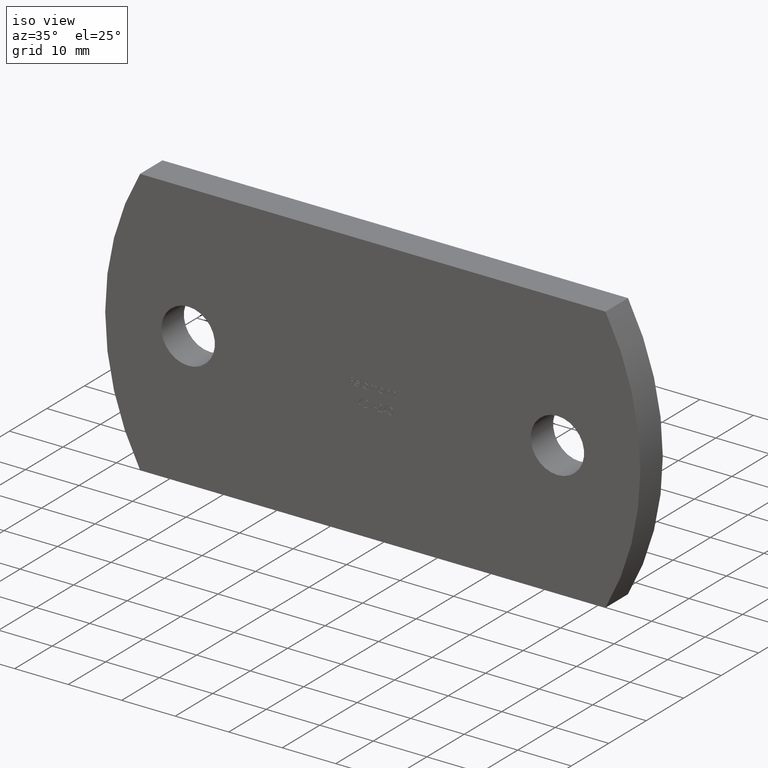
[diagram: clean part render]
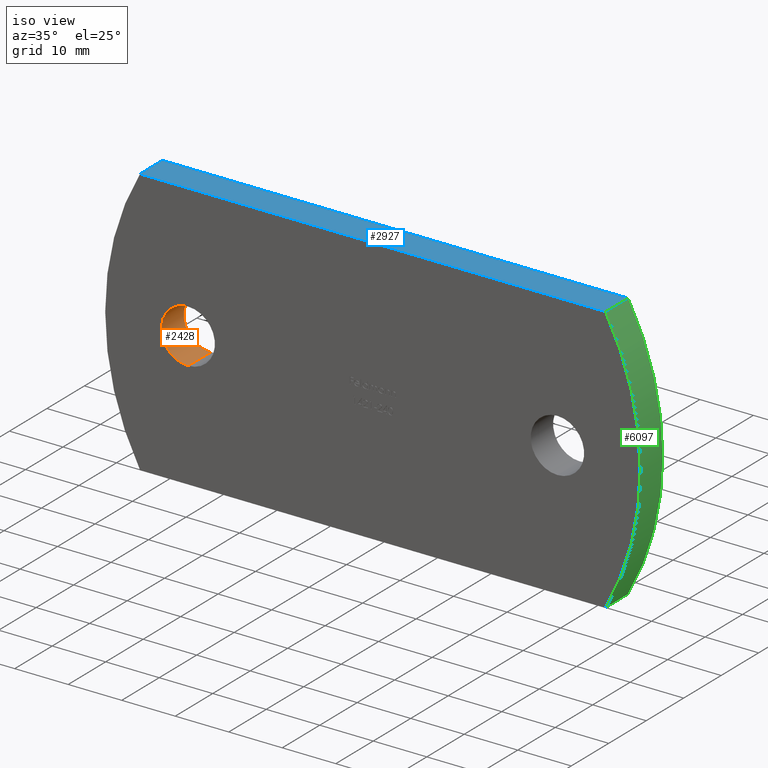
[diagram: same view with three faces highlighted in distinct colors, each labeled with its STEP entity id]
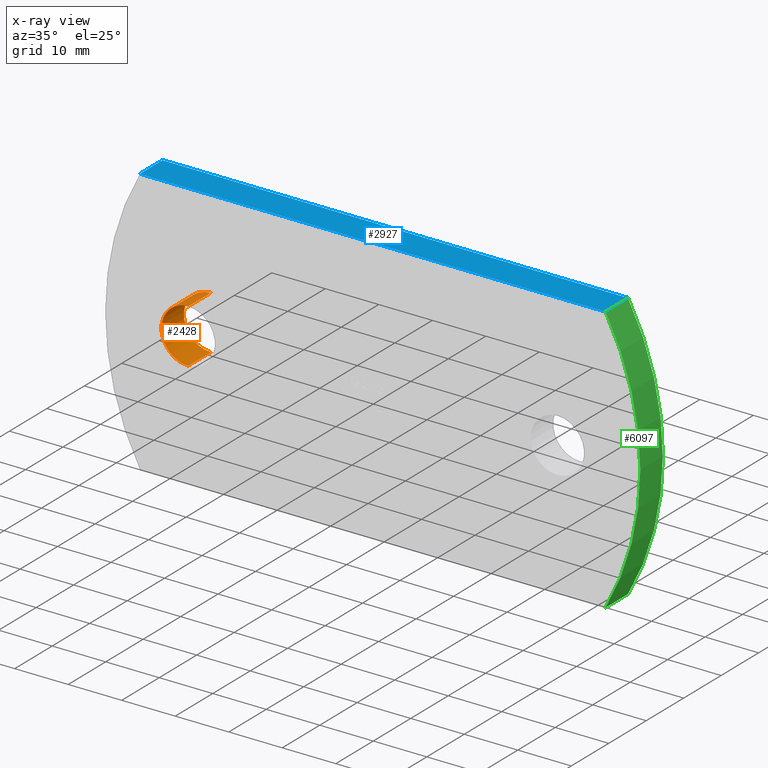
[diagram: x-ray of the same camera — body ghosted, the three highlighted faces saturated]
A machine part, iso view with three faces highlighted in distinct colors.
The next image is the same camera in x-ray (body ghosted, the three faces saturated) — at least one of them is partly hidden behind the body in this view.
Their STEP definitions:

[orange] entity #2428 — the highlighted cylindrical surface (edge-blend (fillet) strip) has radius 5 mm, axis along (-0, 1, -0).
#592 = FACE_OUTER_BOUND ( 'NONE', #7087, .T. ) ;
#674 = VERTEX_POINT ( 'NONE', #7604 ) ;
#957 = DIRECTION ( 'NONE',  ( 0.000000000000000000, 1.000000000000000000, 0.000000000000000000 ) ) ;
#1007 = LINE ( 'NONE', #8254, #4015 ) ;
#1648 = CARTESIAN_POINT ( 'NONE',  ( -34.50000000000000000, 3.000000000000000000, 5.000000000000000000 ) ) ;
#1689 = AXIS2_PLACEMENT_3D ( 'NONE', #5326, #6112, #7735 ) ;
#1871 = DIRECTION ( 'NONE',  ( 0.000000000000000000, 1.000000000000000000, 0.000000000000000000 ) ) ;
#2428 = ADVANCED_FACE ( 'NONE', ( #592 ), #9794, .F. ) ;
#2610 = DIRECTION ( 'NONE',  ( -0.000000000000000000, 1.000000000000000000, -0.000000000000000000 ) ) ;
#2976 = VECTOR ( 'NONE', #2610, 1000.000000000000000 ) ;
#3237 = VERTEX_POINT ( 'NONE', #1648 ) ;
#3359 = ORIENTED_EDGE ( 'NONE', *, *, #8407, .F. ) ;
#3436 = EDGE_CURVE ( 'NONE', #9226, #674, #6781, .T. ) ;
#3767 = CARTESIAN_POINT ( 'NONE',  ( -34.50000000000000000, -3.000000000000000000, -5.000000000000000000 ) ) ;
#3837 = EDGE_CURVE ( 'NONE', #9156, #3237, #6034, .T. ) ;
#4015 = VECTOR ( 'NONE', #9023, 1000.000000000000000 ) ;
#4118 = CARTESIAN_POINT ( 'NONE',  ( -34.50000000000000000, -7.000000000000000000, 5.000000000000000000 ) ) ;
#4231 = DIRECTION ( 'NONE',  ( 0.000000000000000000, 0.000000000000000000, 1.000000000000000000 ) ) ;
#5326 = CARTESIAN_POINT ( 'NONE',  ( -34.50000000000000000, -7.000000000000000000, 0.000000000000000000 ) ) ;
#6034 = CIRCLE ( 'NONE', #8026, 5.000000000000000000 ) ;
#6112 = DIRECTION ( 'NONE',  ( -0.000000000000000000, 1.000000000000000000, -0.000000000000000000 ) ) ;
#6415 = EDGE_CURVE ( 'NONE', #9226, #9156, #1007, .T. ) ;
#6539 = CARTESIAN_POINT ( 'NONE',  ( -34.50000000000000000, -3.000000000000000000, 0.000000000000000000 ) ) ;
#6781 = CIRCLE ( 'NONE', #7162, 5.000000000000000000 ) ;
#7087 = EDGE_LOOP ( 'NONE', ( #10130, #9588, #8594, #3359 ) ) ;
#7162 = AXIS2_PLACEMENT_3D ( 'NONE', #6539, #1871, #7373 ) ;
#7373 = DIRECTION ( 'NONE',  ( 0.000000000000000000, 0.000000000000000000, 1.000000000000000000 ) ) ;
#7604 = CARTESIAN_POINT ( 'NONE',  ( -34.50000000000000000, -3.000000000000000000, 5.000000000000000000 ) ) ;
#7735 = DIRECTION ( 'NONE',  ( 0.000000000000000000, 0.000000000000000000, 1.000000000000000000 ) ) ;
#8026 = AXIS2_PLACEMENT_3D ( 'NONE', #8058, #957, #4231 ) ;
#8058 = CARTESIAN_POINT ( 'NONE',  ( -34.50000000000000000, 3.000000000000000000, 0.000000000000000000 ) ) ;
#8254 = CARTESIAN_POINT ( 'NONE',  ( -34.50000000000000000, -7.000000000000000000, -5.000000000000000000 ) ) ;
#8407 = EDGE_CURVE ( 'NONE', #674, #3237, #9416, .T. ) ;
#8594 = ORIENTED_EDGE ( 'NONE', *, *, #3837, .T. ) ;
#9023 = DIRECTION ( 'NONE',  ( -0.000000000000000000, 1.000000000000000000, -0.000000000000000000 ) ) ;
#9156 = VERTEX_POINT ( 'NONE', #10035 ) ;
#9226 = VERTEX_POINT ( 'NONE', #3767 ) ;
#9416 = LINE ( 'NONE', #4118, #2976 ) ;
#9588 = ORIENTED_EDGE ( 'NONE', *, *, #6415, .T. ) ;
#9794 = CYLINDRICAL_SURFACE ( 'NONE', #1689, 5.000000000000000000 ) ;
#10035 = CARTESIAN_POINT ( 'NONE',  ( -34.50000000000000000, 3.000000000000000000, -5.000000000000000000 ) ) ;
#10130 = ORIENTED_EDGE ( 'NONE', *, *, #3436, .F. ) ;

[blue] entity #2927 — the highlighted planar face has unit normal (0, 0, -1).
#203 = VECTOR ( 'NONE', #8118, 1000.000000000000000 ) ;
#423 = VERTEX_POINT ( 'NONE', #8859 ) ;
#510 = DIRECTION ( 'NONE',  ( -0.000000000000000000, -1.000000000000000000, -0.000000000000000000 ) ) ;
#757 = AXIS2_PLACEMENT_3D ( 'NONE', #1334, #5395, #9330 ) ;
#1064 = CARTESIAN_POINT ( 'NONE',  ( -43.50000000000000711, 3.000000000000000000, 25.00000000000000000 ) ) ;
#1334 = CARTESIAN_POINT ( 'NONE',  ( -43.50000000000000711, 3.000000000000000000, 25.00000000000000000 ) ) ;
#1882 = VERTEX_POINT ( 'NONE', #7319 ) ;
#1944 = LINE ( 'NONE', #3332, #203 ) ;
#2182 = PLANE ( 'NONE',  #757 ) ;
#2622 = VECTOR ( 'NONE', #3963, 1000.000000000000000 ) ;
#2860 = ORIENTED_EDGE ( 'NONE', *, *, #10190, .T. ) ;
#2923 = CARTESIAN_POINT ( 'NONE',  ( 43.49999999999998579, 3.000000000000000000, 25.00000000000003553 ) ) ;
#2927 = ADVANCED_FACE ( 'NONE', ( #7078 ), #2182, .F. ) ;
#3093 = CARTESIAN_POINT ( 'NONE',  ( -43.50000000000000711, -3.000000000000000000, 25.00000000000000000 ) ) ;
#3140 = LINE ( 'NONE', #3093, #2622 ) ;
#3332 = CARTESIAN_POINT ( 'NONE',  ( -43.50000000000000711, 3.000000000000000000, 25.00000000000000000 ) ) ;
#3432 = ORIENTED_EDGE ( 'NONE', *, *, #6780, .F. ) ;
#3745 = EDGE_LOOP ( 'NONE', ( #5905, #5338, #3432, #2860 ) ) ;
#3963 = DIRECTION ( 'NONE',  ( 1.000000000000000000, 0.000000000000000000, 3.190296047773438629E-16 ) ) ;
#4247 = VECTOR ( 'NONE', #510, 1000.000000000000000 ) ;
#4496 = VERTEX_POINT ( 'NONE', #4581 ) ;
#4581 = CARTESIAN_POINT ( 'NONE',  ( -43.50000000000000711, -3.000000000000000000, 25.00000000000000000 ) ) ;
#4663 = EDGE_CURVE ( 'NONE', #1882, #10123, #7721, .T. ) ;
#5338 = ORIENTED_EDGE ( 'NONE', *, *, #4663, .F. ) ;
#5395 = DIRECTION ( 'NONE',  ( 3.190296047773438629E-16, 0.000000000000000000, -1.000000000000000000 ) ) ;
#5905 = ORIENTED_EDGE ( 'NONE', *, *, #7497, .T. ) ;
#6652 = DIRECTION ( 'NONE',  ( 1.000000000000000000, 0.000000000000000000, 3.190296047773438629E-16 ) ) ;
#6698 = LINE ( 'NONE', #1064, #8593 ) ;
#6780 = EDGE_CURVE ( 'NONE', #423, #1882, #6698, .T. ) ;
#7078 = FACE_OUTER_BOUND ( 'NONE', #3745, .T. ) ;
#7319 = CARTESIAN_POINT ( 'NONE',  ( 43.49999999999998579, 3.000000000000000000, 25.00000000000003553 ) ) ;
#7497 = EDGE_CURVE ( 'NONE', #4496, #10123, #3140, .T. ) ;
#7721 = LINE ( 'NONE', #2923, #4247 ) ;
#8118 = DIRECTION ( 'NONE',  ( -0.000000000000000000, -1.000000000000000000, -0.000000000000000000 ) ) ;
#8593 = VECTOR ( 'NONE', #6652, 1000.000000000000000 ) ;
#8859 = CARTESIAN_POINT ( 'NONE',  ( -43.50000000000000711, 3.000000000000000000, 25.00000000000000000 ) ) ;
#9330 = DIRECTION ( 'NONE',  ( -1.000000000000000000, 0.000000000000000000, -3.190296047773438629E-16 ) ) ;
#9690 = CARTESIAN_POINT ( 'NONE',  ( 43.49999999999998579, -3.000000000000000000, 25.00000000000003553 ) ) ;
#10123 = VERTEX_POINT ( 'NONE', #9690 ) ;
#10190 = EDGE_CURVE ( 'NONE', #423, #4496, #1944, .T. ) ;

[green] entity #6097 — the highlighted cylindrical surface (partial cylindrical patch) has radius 51.3269 mm, axis along (-0, -1, -0).
#145 = CIRCLE ( 'NONE', #6861, 51.32692307692307310 ) ;
#366 = EDGE_CURVE ( 'NONE', #9059, #6928, #4462, .T. ) ;
#510 = DIRECTION ( 'NONE',  ( -0.000000000000000000, -1.000000000000000000, -0.000000000000000000 ) ) ;
#887 = CIRCLE ( 'NONE', #1276, 51.32692307692307310 ) ;
#933 = ORIENTED_EDGE ( 'NONE', *, *, #366, .F. ) ;
#1276 = AXIS2_PLACEMENT_3D ( 'NONE', #8848, #4158, #8806 ) ;
#1797 = DIRECTION ( 'NONE',  ( 0.000000000000000000, 0.000000000000000000, -1.000000000000000000 ) ) ;
#1805 = EDGE_LOOP ( 'NONE', ( #5622, #933, #9451, #8272 ) ) ;
#1882 = VERTEX_POINT ( 'NONE', #7319 ) ;
#1893 = AXIS2_PLACEMENT_3D ( 'NONE', #7737, #10207, #2977 ) ;
#2923 = CARTESIAN_POINT ( 'NONE',  ( 43.49999999999998579, 3.000000000000000000, 25.00000000000003553 ) ) ;
#2977 = DIRECTION ( 'NONE',  ( 0.000000000000000000, 0.000000000000000000, -1.000000000000000000 ) ) ;
#3929 = DIRECTION ( 'NONE',  ( -0.000000000000000000, -1.000000000000000000, -0.000000000000000000 ) ) ;
#4145 = CARTESIAN_POINT ( 'NONE',  ( -1.326923076923072653, -3.000000000000000000, 3.250024197737195523E-16 ) ) ;
#4158 = DIRECTION ( 'NONE',  ( 0.000000000000000000, 1.000000000000000000, -0.000000000000000000 ) ) ;
#4170 = DIRECTION ( 'NONE',  ( 0.000000000000000000, 1.000000000000000000, -0.000000000000000000 ) ) ;
#4247 = VECTOR ( 'NONE', #510, 1000.000000000000000 ) ;
#4462 = LINE ( 'NONE', #10212, #8575 ) ;
#4663 = EDGE_CURVE ( 'NONE', #1882, #10123, #7721, .T. ) ;
#5622 = ORIENTED_EDGE ( 'NONE', *, *, #5913, .T. ) ;
#5913 = EDGE_CURVE ( 'NONE', #10123, #6928, #145, .T. ) ;
#6097 = ADVANCED_FACE ( 'NONE', ( #6971 ), #8242, .T. ) ;
#6729 = EDGE_CURVE ( 'NONE', #1882, #9059, #887, .T. ) ;
#6861 = AXIS2_PLACEMENT_3D ( 'NONE', #4145, #4170, #1797 ) ;
#6928 = VERTEX_POINT ( 'NONE', #8625 ) ;
#6971 = FACE_OUTER_BOUND ( 'NONE', #1805, .T. ) ;
#7319 = CARTESIAN_POINT ( 'NONE',  ( 43.49999999999998579, 3.000000000000000000, 25.00000000000003553 ) ) ;
#7721 = LINE ( 'NONE', #2923, #4247 ) ;
#7737 = CARTESIAN_POINT ( 'NONE',  ( -1.326923076923072653, 3.000000000000000000, 3.250024197737195523E-16 ) ) ;
#8242 = CYLINDRICAL_SURFACE ( 'NONE', #1893, 51.32692307692307310 ) ;
#8272 = ORIENTED_EDGE ( 'NONE', *, *, #4663, .T. ) ;
#8382 = CARTESIAN_POINT ( 'NONE',  ( 43.49999999999999289, 3.000000000000000000, -25.00000000000002842 ) ) ;
#8575 = VECTOR ( 'NONE', #3929, 1000.000000000000000 ) ;
#8625 = CARTESIAN_POINT ( 'NONE',  ( 43.49999999999999289, -3.000000000000000000, -25.00000000000002842 ) ) ;
#8806 = DIRECTION ( 'NONE',  ( 0.000000000000000000, 0.000000000000000000, -1.000000000000000000 ) ) ;
#8848 = CARTESIAN_POINT ( 'NONE',  ( -1.326923076923072653, 3.000000000000000000, 3.250024197737195523E-16 ) ) ;
#9059 = VERTEX_POINT ( 'NONE', #8382 ) ;
#9451 = ORIENTED_EDGE ( 'NONE', *, *, #6729, .F. ) ;
#9690 = CARTESIAN_POINT ( 'NONE',  ( 43.49999999999998579, -3.000000000000000000, 25.00000000000003553 ) ) ;
#10123 = VERTEX_POINT ( 'NONE', #9690 ) ;
#10207 = DIRECTION ( 'NONE',  ( -0.000000000000000000, -1.000000000000000000, -0.000000000000000000 ) ) ;
#10212 = CARTESIAN_POINT ( 'NONE',  ( 43.49999999999999289, 3.000000000000000000, -25.00000000000002842 ) ) ;